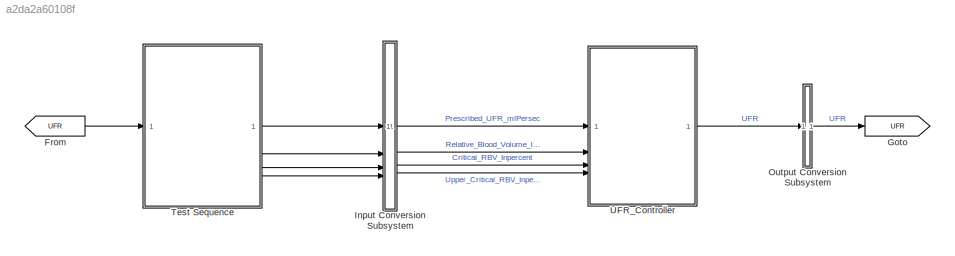
MODEL slx_a2da2a60108f
KIND model
CONFIG AbsTol = auto
CONFIG EnableMultiTasking = off
CONFIG FixedStep = auto
CONFIG MaxStep = auto
CONFIG MinStep = auto
CONFIG RelTol = 1e-3
CONFIG SampleTimeConstraint = Unconstrained
CONFIG SolverName = VariableStepAuto
CONFIG StartTime = 0.0
CONFIG StopTime = 3600*4
BLOCK [From] From
  GotoTag = UFR
BLOCK [Goto] Goto
  GotoTag = UFR
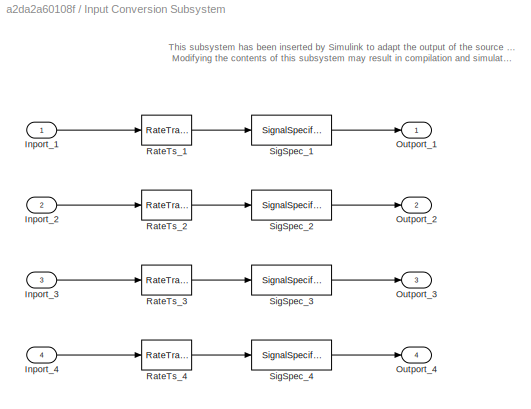
BLOCK [SubSystem] Input Conversion Subsystem
  AttributesFormatString = %<Description>
  Description = Signal spec.\nand routing
  Permissions = ReadOnly
  PermitHierarchicalResolution = ExplicitOnly
  Tag = __SLT_ICS__
  TreatAsGroupedWhenPropagatingVariantConditions = off
  UserDataPersistent = on
BLOCK [Inport] Input Conversion Subsystem/Inport_1
BLOCK [Inport] Input Conversion Subsystem/Inport_2
  Port = 2
BLOCK [Inport] Input Conversion Subsystem/Inport_3
  Port = 3
BLOCK [Inport] Input Conversion Subsystem/Inport_4
  Port = 4
BLOCK [Outport] Input Conversion Subsystem/Outport_1
BLOCK [Outport] Input Conversion Subsystem/Outport_2
  Port = 2
BLOCK [Outport] Input Conversion Subsystem/Outport_3
  Port = 3
BLOCK [Outport] Input Conversion Subsystem/Outport_4
  Port = 4
BLOCK [RateTransition] Input Conversion Subsystem/RateTs_1
  OutPortSampleTime = 0.01
BLOCK [RateTransition] Input Conversion Subsystem/RateTs_2
  OutPortSampleTime = 0.01
BLOCK [RateTransition] Input Conversion Subsystem/RateTs_3
  OutPortSampleTime = 0.01
BLOCK [RateTransition] Input Conversion Subsystem/RateTs_4
  OutPortSampleTime = 0.01
BLOCK [SignalSpecification] Input Conversion Subsystem/SigSpec_1
  Dimensions = [1]
  OutDataTypeStr = double
  SampleTime = 0.01
  SignalType = real
  VarSizeSig = No
BLOCK [SignalSpecification] Input Conversion Subsystem/SigSpec_2
  Dimensions = [1]
  OutDataTypeStr = double
  SampleTime = 0.01
  SignalType = real
  VarSizeSig = No
BLOCK [SignalSpecification] Input Conversion Subsystem/SigSpec_3
  Dimensions = [1]
  OutDataTypeStr = double
  SampleTime = 0.01
  SignalType = real
  VarSizeSig = No
BLOCK [SignalSpecification] Input Conversion Subsystem/SigSpec_4
  Dimensions = [1]
  OutDataTypeStr = double
  SampleTime = 0.01
  SignalType = real
  VarSizeSig = No
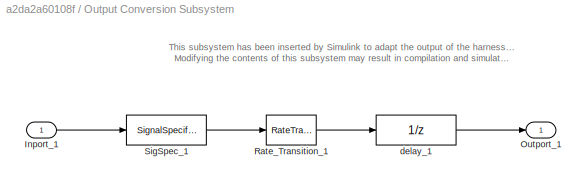
BLOCK [SubSystem] Output Conversion Subsystem
  AttributesFormatString = %<Description>
  Description = Signal spec.\nand routing
  Permissions = ReadOnly
  PermitHierarchicalResolution = ExplicitOnly
  Tag = __SLT_OCS__
  TreatAsGroupedWhenPropagatingVariantConditions = off
  UserDataPersistent = on
BLOCK [Inport] Output Conversion Subsystem/Inport_1
BLOCK [Outport] Output Conversion Subsystem/Outport_1
BLOCK [RateTransition] Output Conversion Subsystem/Rate_Transition_1
  OutPortSampleTimeOpt = Inherit
BLOCK [SignalSpecification] Output Conversion Subsystem/SigSpec_1
  Dimensions = [1]
  OutDataTypeStr = double
  SampleTime = 0.01
  SignalType = real
  VarSizeSig = No
BLOCK [UnitDelay] Output Conversion Subsystem/delay_1
  SampleTime = -1
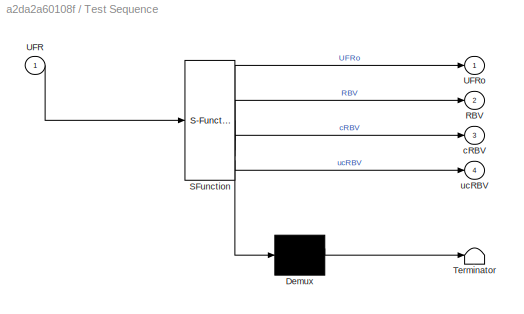
BLOCK [SubSystem] Test Sequence
  ErrorFcn = Stateflow.Translate.translate
  PermitHierarchicalResolution = ExplicitOnly
  SFBlockType = Test Sequence
  ShowPortLabels = none
  TreatAsAtomicUnit = on
BLOCK [Demux] Test Sequence/ Demux 
  Outputs = 1
BLOCK [S-Function] Test Sequence/ SFunction 
  EnableBusSupport = on
  FunctionName = sf_sfun
  Parameters = 1
  PortCounts = [1 5]
  SFcnIsStateOwnerBlock = off
  SFunctionDeploymentMode = off
  Tag = Stateflow S-Function 4
BLOCK [Terminator] Test Sequence/ Terminator 
BLOCK [Outport] Test Sequence/RBV
  Port = 2
BLOCK [Inport] Test Sequence/UFR
BLOCK [Outport] Test Sequence/UFRo
BLOCK [Outport] Test Sequence/cRBV
  Port = 3
BLOCK [Outport] Test Sequence/ucRBV
  Port = 4
BLOCK [ModelReference] UFR_Controller
  ModelNameDialog = UFR_Controller
  ModelReferenceVersion = 3.91
ANNOTATION Input Conversion Subsystem: This subsystem has been inserted by Simulink to adapt the output of the source blocks to the interface required by the harnessed component. Modifying the contents of this subsystem may result in compilation and simulation failure.
ANNOTATION Output Conversion Subsystem: This subsystem has been inserted by Simulink to adapt the output of the harnessed component to the interface required by the sink blocks. Modifying the contents of this subsystem may result in compilation and simulation failure.
LINE From:1 -> Test Sequence:1
LINE Input Conversion Subsystem/Inport_1:1 -> Input Conversion Subsystem/RateTs_1:1
LINE Input Conversion Subsystem/Inport_2:1 -> Input Conversion Subsystem/RateTs_2:1
LINE Input Conversion Subsystem/Inport_3:1 -> Input Conversion Subsystem/RateTs_3:1
LINE Input Conversion Subsystem/Inport_4:1 -> Input Conversion Subsystem/RateTs_4:1
LINE Input Conversion Subsystem/RateTs_1:1 -> Input Conversion Subsystem/SigSpec_1:1
LINE Input Conversion Subsystem/RateTs_2:1 -> Input Conversion Subsystem/SigSpec_2:1
LINE Input Conversion Subsystem/RateTs_3:1 -> Input Conversion Subsystem/SigSpec_3:1
LINE Input Conversion Subsystem/RateTs_4:1 -> Input Conversion Subsystem/SigSpec_4:1
LINE Input Conversion Subsystem/SigSpec_1:1 -> Input Conversion Subsystem/Outport_1:1
LINE Input Conversion Subsystem/SigSpec_2:1 -> Input Conversion Subsystem/Outport_2:1
LINE Input Conversion Subsystem/SigSpec_3:1 -> Input Conversion Subsystem/Outport_3:1
LINE Input Conversion Subsystem/SigSpec_4:1 -> Input Conversion Subsystem/Outport_4:1
LINE Input Conversion Subsystem:1 -> UFR_Controller:1
LINE Input Conversion Subsystem:2 -> UFR_Controller:2
LINE Input Conversion Subsystem:3 -> UFR_Controller:3
LINE Input Conversion Subsystem:4 -> UFR_Controller:4
LINE Output Conversion Subsystem/Inport_1:1 -> Output Conversion Subsystem/SigSpec_1:1
LINE Output Conversion Subsystem/Rate_Transition_1:1 -> Output Conversion Subsystem/delay_1:1
LINE Output Conversion Subsystem/SigSpec_1:1 -> Output Conversion Subsystem/Rate_Transition_1:1
LINE Output Conversion Subsystem/delay_1:1 -> Output Conversion Subsystem/Outport_1:1
LINE Output Conversion Subsystem:1 -> Goto:1
LINE Test Sequence:1 -> Input Conversion Subsystem:1
LINE Test Sequence:2 -> Input Conversion Subsystem:2
LINE Test Sequence:3 -> Input Conversion Subsystem:3
LINE Test Sequence:4 -> Input Conversion Subsystem:4
LINE UFR_Controller:1 -> Output Conversion Subsystem:1
CHART Test Sequence states=18 transitions=18
  STATE_LABEL 'Constant_UFR'
  STATE_LABEL 'Initialize\n\n%% Initialize data outputs.\nUFRo = 0.18;\nRBV = 100; % Full volume\ncRBV = 94;\nucRBV = 97;'
  STATE_LABEL 'Constant_UFR_Check\n\nUFRo = 0.18;\nRBV = 100; % Full volume'
  STATE_LABEL 'RBV_Reduction\nRBV = 100-ramp(et/0.1);'
  STATE_LABEL 'Verify_NoUFR_Change\n\nverify(UFR == UFRo);'
  STATE_LABEL 'End'
  STATE_LABEL '[\ntrue\n]'
  STATE_LABEL '[\nafter(0.2,sec)\n]'
  STATE_LABEL '[\ntrue\n]'
  STATE_LABEL 'Initialize\n\n%% Initialize data outputs.\nUFRo = 0.18;\nRBV = 100; % Full volume\ncRBV = 94;\nucRBV = 97;'
  STATE_LABEL 'Constant_UFR_Check\n\nUFRo = 0.18;\nRBV = 100; % Full volume'
  STATE_LABEL 'RBV_Reduction\nRBV = 100-ramp(et/0.1);'
  STATE_LABEL 'RBV_Reduction\nRBV = 100-ramp(et/0.1);'
  STATE_LABEL 'Verify_NoUFR_Change\n\nverify(UFR == UFRo);'
  STATE_LABEL 'End'
  STATE_LABEL 'UFR_Adjustment'
  STATE_LABEL 'Initialize\n\n%% Initialize data outputs.\nUFRo = 0.18;\nRBV = 100; % Full volume\ncRBV = 94;\nucRBV = 97;'
  STATE_LABEL 'UFR_Adjustment_Check\n\nUFRo = 0.18;\nRBV = 100; % Full volume'
  STATE_LABEL 'RBV_Reduction\nRBV = 100-ramp(et/0.1);'
  STATE_LABEL 'Verify_UFR_Reduction\n\nverify(UFR < UFRo);'
  STATE_LABEL 'End'
  STATE_LABEL '[\ntrue\n]'
  STATE_LABEL '[\nafter(0.4,sec)\n]'
  STATE_LABEL '[\ntrue\n]'
  STATE_LABEL 'Initialize\n\n%% Initialize data outputs.\nUFRo = 0.18;\nRBV = 100; % Full volume\ncRBV = 94;\nucRBV = 97;'
  STATE_LABEL 'UFR_Adjustment_Check\n\nUFRo = 0.18;\nRBV = 100; % Full volume'
  STATE_LABEL 'RBV_Reduction\nRBV = 100-ramp(et/0.1);'
  STATE_LABEL 'RBV_Reduction\nRBV = 100-ramp(et/0.1);'
  STATE_LABEL 'Verify_UFR_Reduction\n\nverify(UFR < UFRo);'
  STATE_LABEL 'End'
  STATE_LABEL 'UFR_Stop'
  STATE_LABEL 'Initialize\n\n%% Initialize data outputs.\nUFRo = 0.18;\nRBV = 100; % Full volume\ncRBV = 94;\nucRBV = 97;'
  STATE_LABEL 'UFR_Stop_Check\n\nUFRo = 0.18;\nRBV = 100; % Full volume'
  STATE_LABEL 'RBV_Reduction\nRBV = 100-ramp(et/0.1);'
  STATE_LABEL 'Verify_Zero_UFR\nverify(UFR == 0);'
  STATE_LABEL 'End'
  STATE_LABEL '[\nafter(0.7,sec)\n]'
  STATE_LABEL '[\ntrue\n]'
  STATE_LABEL '[\ntrue\n]'
  STATE_LABEL 'Initialize\n\n%% Initialize data outputs.\nUFRo = 0.18;\nRBV = 100; % Full volume\ncRBV = 94;\nucRBV = 97;'
